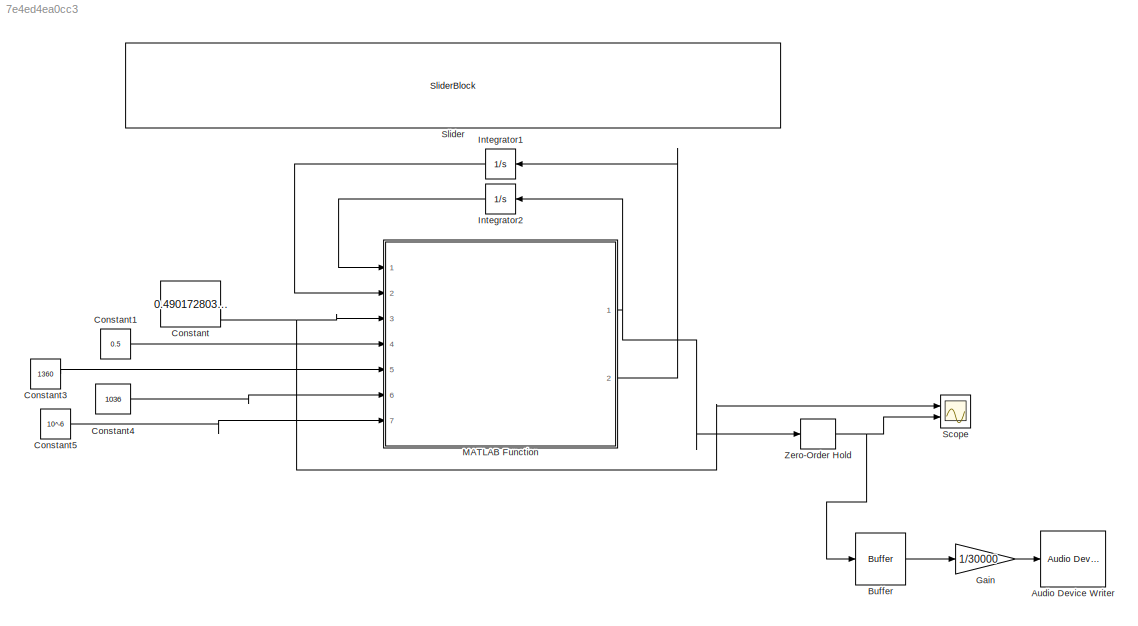
MODEL slx_7e4ed4ea0cc3
KIND model
CONFIG AbsTol = auto
CONFIG EnableMultiTasking = off
CONFIG FixedStep = auto
CONFIG MaxStep = auto
CONFIG MinStep = auto
CONFIG RelTol = 1e-3
CONFIG SampleTimeConstraint = Unconstrained
CONFIG Solver = VariableStepAuto
CONFIG SolverName = VariableStepAuto
CONFIG StartTime = 0.0
CONFIG StopTime = 60
BLOCK [Reference] Audio Device Writer  REF=dspsnks4/Audio Device
Writer
  Ports = [1]
  SourceBlock = dspsnks4/Audio Device\nWriter
  SourceProductBaseCode = DS
  SourceType = Audio Device Writer
BLOCK [Buffer] Buffer
  N = 10000
  OutputFrames = off
  V = 1024
BLOCK [Constant] Constant
  Value = 0.4901728030041437
BLOCK [Constant] Constant1
  Value = 0.5
BLOCK [Constant] Constant3
  Value = 1360
BLOCK [Constant] Constant4
  Value = 1036
BLOCK [Constant] Constant5
  Value = 10^-6
BLOCK [Gain] Gain
  Gain = 1/30000
BLOCK [Integrator] Integrator1
  Ports = [1, 1]
BLOCK [Integrator] Integrator2
  InitialCondition = 0.01
  Ports = [1, 1]
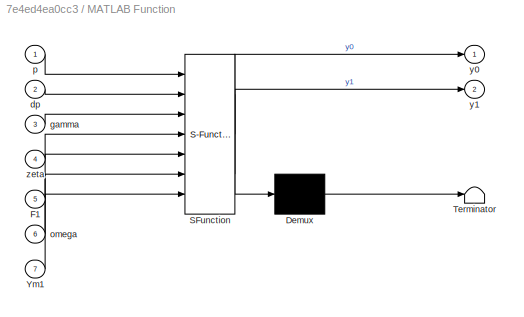
BLOCK [SubSystem] MATLAB Function
  ErrorFcn = Stateflow.Translate.translate
  PermitHierarchicalResolution = ExplicitOnly
  Ports = [7, 2]
  RequestExecContextInheritance = off
  SFBlockType = MATLAB Function
  TreatAsAtomicUnit = on
BLOCK [Demux] MATLAB Function/ Demux 
  Outputs = 1
  Ports = [1, 1]
BLOCK [S-Function] MATLAB Function/ SFunction 
  EnableBusSupport = on
  FunctionName = sf_sfun
  PortCounts = [7 3]
  Ports = [7, 3]
  SFcnIsStateOwnerBlock = off
  SFunctionDeploymentMode = off
  Tag = Stateflow S-Function 2
BLOCK [Terminator] MATLAB Function/ Terminator 
BLOCK [Inport] MATLAB Function/F1
  Port = 5
BLOCK [Inport] MATLAB Function/Ym1
  Port = 7
BLOCK [Inport] MATLAB Function/dp
  Port = 2
BLOCK [Inport] MATLAB Function/gamma
  Port = 3
BLOCK [Inport] MATLAB Function/omega
  Port = 6
BLOCK [Inport] MATLAB Function/p
BLOCK [Outport] MATLAB Function/y0
BLOCK [Outport] MATLAB Function/y1
  Port = 2
BLOCK [Inport] MATLAB Function/zeta
  Port = 4
BLOCK [Scope] Scope
  Floating = off
  NumInputPorts = 2
  Ports = [2]
  ScopeSpecificationString = Simulink.scopes.TimeScopeBlockCfg('CurrentConfiguration', extmgr.ConfigurationSet(extmgr.Configuration('Core','General UI',true),extmgr.Configuration('Core','Source UI',true),extmgr.Configuration('Sources','WiredSimulink',true),extmgr.Configuration('Visuals','Time Domain',true,'SerializedDisplays',{struct('MinYLimReal','0.34288','MaxYLimReal','0.65679','YLabelReal','','MinYLimMag','0.34288','MaxYL...<+2019ch>
BLOCK [SliderBlock] Slider
  ScaleMax = 1
  ScaleMin = 0.001
BLOCK [ZeroOrderHold] Zero-Order Hold
  SampleTime = 1/22050
LINE Buffer:1 -> Gain:1
LINE Constant1:1 -> MATLAB Function:4
LINE Constant3:1 -> MATLAB Function:5
LINE Constant4:1 -> MATLAB Function:6
LINE Constant5:1 -> MATLAB Function:7
NET Constant:1 -> MATLAB Function:3, Scope:1
LINE Gain:1 -> Audio Device Writer:1
LINE Integrator1:1 -> MATLAB Function:2
LINE Integrator2:1 -> MATLAB Function:1
NET MATLAB Function:1 -> Integrator2:1, Zero-Order Hold:1
LINE MATLAB Function:2 -> Integrator1:1
NET Zero-Order Hold:1 -> Buffer:1, Scope:2
note: NET lines group one-source signal fan-out (src -> all destinations, sorted); 1:1 wires keep LINE
CHART MATLAB Function states=1 transitions=1
  STATE_LABEL 'eML_blk_kernel()'
  STATE_LABEL 'SCRIPT:\nfunction [y0, y1] = fcn(p, dp, gamma, zeta,F1, omega, Ym1)\n\nA = zeta * (3*gamma-1)/(2*sqrt(gamma));\nB = -zeta*(3*gamma+1) / (8*gamma^(3/2));\nC = -zeta*(gamma+1)/(16*gamma^(5/2));\n\ny0 = dp;\ny1 = -F1*((Ym1-A) - 2*B*p - 3*C*p^2)*dp - p*omega^2;\n'
CHART  states=0 transitions=0
